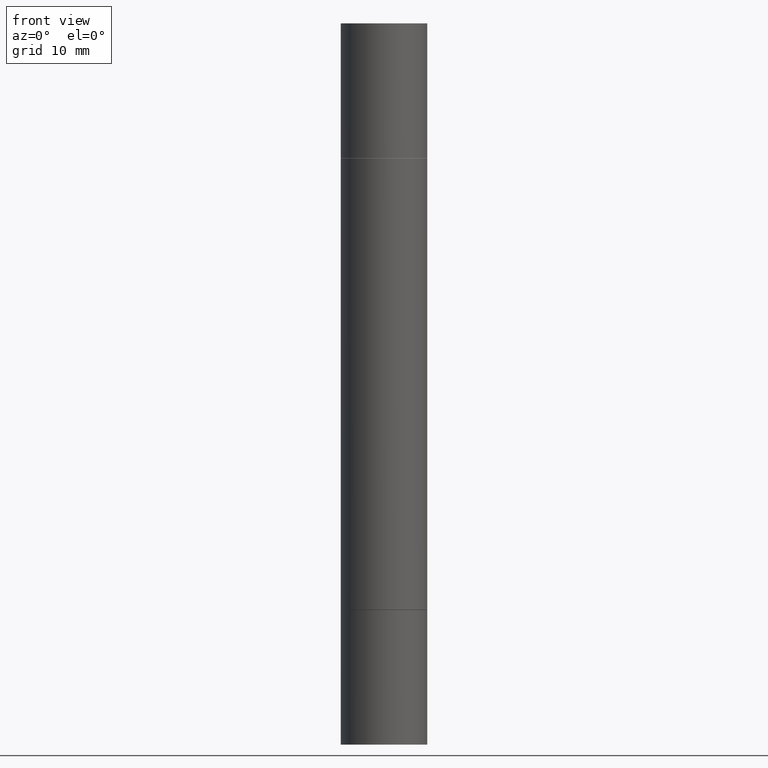
[diagram: clean part render]
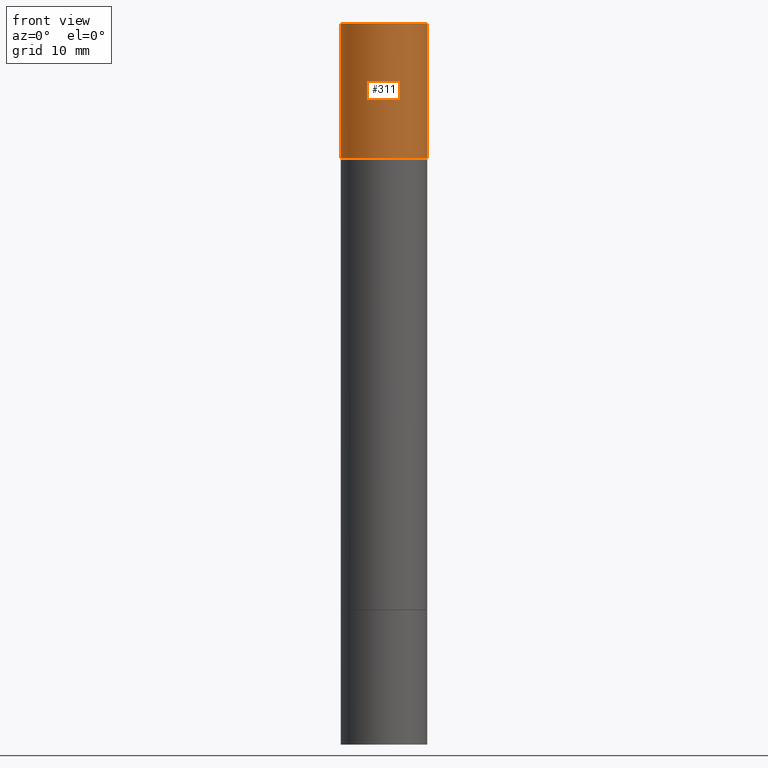
[diagram: same view with one face highlighted and labeled with its STEP entity id]
A machine part, front view. The second image highlights one B-rep face of the part: STEP entity #311.
In plain terms, the highlighted cylindrical surface (partial cylindrical patch) has radius 4.4996 mm, axis along (-0, -0, -1).
Its self-contained STEP definition (entity closure, byte-faithful):
#2 = AXIS2_PLACEMENT_3D ( 'NONE', #75, #79, #178 ) ;
#30 = CARTESIAN_POINT ( 'NONE',  ( 7.220980290903470182E-29, 2.080354946989631982E-18, 5.463695987328526437E-16 ) ) ;
#43 = CARTESIAN_POINT ( 'NONE',  ( 0.1771500000000000019, -1.154875829063514805E-14, -2.952799999999998981 ) ) ;
#47 = VECTOR ( 'NONE', #613, 39.37007874015748143 ) ;
#67 = DIRECTION ( 'NONE',  ( 1.000000000000000000, -6.982962677686266711E-15, 0.000000000000000000 ) ) ;
#75 = CARTESIAN_POINT ( 'NONE',  ( 0.000000000000000000, -1.031172645228302408E-14, -2.952799999999998981 ) ) ;
#79 = DIRECTION ( 'NONE',  ( -2.445468806185136597E-29, -3.492890411551752677E-15, -1.000000000000000000 ) ) ;
#80 = CARTESIAN_POINT ( 'NONE',  ( -0.1771500000000000019, -9.096389231977797770E-15, -2.952799999999998981 ) ) ;
#106 = ORIENTED_EDGE ( 'NONE', *, *, #501, .T. ) ;
#113 = VERTEX_POINT ( 'NONE', #200 ) ;
#178 = DIRECTION ( 'NONE',  ( 1.000000000000000000, -6.982962677686272233E-15, 0.000000000000000000 ) ) ;
#199 = CARTESIAN_POINT ( 'NONE',  ( -0.1771500000000000019, 2.547769778285537851E-16, 5.463695987328559963E-16 ) ) ;
#200 = CARTESIAN_POINT ( 'NONE',  ( -0.1771500000000000019, 2.547769778285537851E-16, -0.5511999999999995792 ) ) ;
#284 = FACE_OUTER_BOUND ( 'NONE', #554, .T. ) ;
#311 = ADVANCED_FACE ( 'NONE', ( #284 ), #383, .T. ) ;
#320 = DIRECTION ( 'NONE',  ( 2.445468806185136597E-29, 3.492890411551752677E-15, 1.000000000000000000 ) ) ;
#325 = DIRECTION ( 'NONE',  ( 1.000000000000000000, -6.982962677686266711E-15, 0.000000000000000000 ) ) ;
#326 = VERTEX_POINT ( 'NONE', #651 ) ;
#342 = DIRECTION ( 'NONE',  ( 2.445468806185136597E-29, 3.492890411551752677E-15, 1.000000000000000000 ) ) ;
#377 = EDGE_CURVE ( 'NONE', #326, #633, #678, .T. ) ;
#383 = CYLINDRICAL_SURFACE ( 'NONE', #2, 0.1771500000000000019 ) ;
#395 = LINE ( 'NONE', #80, #508 ) ;
#415 = VERTEX_POINT ( 'NONE', #199 ) ;
#426 = AXIS2_PLACEMENT_3D ( 'NONE', #529, #320, #325 ) ;
#436 = DIRECTION ( 'NONE',  ( -2.445468806185136877E-29, -3.492890411551753071E-15, -1.000000000000000000 ) ) ;
#449 = AXIS2_PLACEMENT_3D ( 'NONE', #30, #342, #67 ) ;
#469 = CIRCLE ( 'NONE', #426, 0.1771500000000000019 ) ;
#478 = ORIENTED_EDGE ( 'NONE', *, *, #377, .F. ) ;
#501 = EDGE_CURVE ( 'NONE', #113, #633, #469, .T. ) ;
#508 = VECTOR ( 'NONE', #436, 39.37007874015748143 ) ;
#529 = CARTESIAN_POINT ( 'NONE',  ( 5.873037884934223228E-29, -1.923200839900336120E-15, -0.5511999999999995792 ) ) ;
#533 = ORIENTED_EDGE ( 'NONE', *, *, #661, .F. ) ;
#548 = CARTESIAN_POINT ( 'NONE',  ( 0.1771500000000000019, -3.160232678252458120E-15, -0.5511999999999995792 ) ) ;
#550 = ORIENTED_EDGE ( 'NONE', *, *, #679, .T. ) ;
#554 = EDGE_LOOP ( 'NONE', ( #533, #550, #106, #478 ) ) ;
#613 = DIRECTION ( 'NONE',  ( -2.445468806185136877E-29, -3.492890411551753071E-15, -1.000000000000000000 ) ) ;
#633 = VERTEX_POINT ( 'NONE', #548 ) ;
#651 = CARTESIAN_POINT ( 'NONE',  ( 0.1771500000000000019, -1.234951483405132701E-15, 5.463695987328526437E-16 ) ) ;
#661 = EDGE_CURVE ( 'NONE', #415, #326, #663, .T. ) ;
#663 = CIRCLE ( 'NONE', #449, 0.1771500000000000019 ) ;
#678 = LINE ( 'NONE', #43, #47 ) ;
#679 = EDGE_CURVE ( 'NONE', #415, #113, #395, .T. ) ;